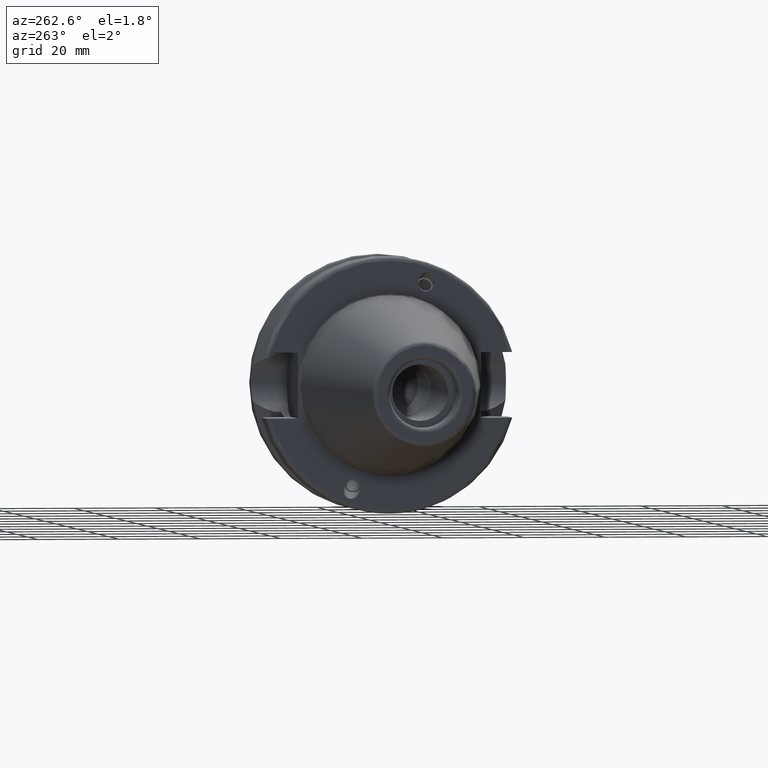
[diagram: clean part render]
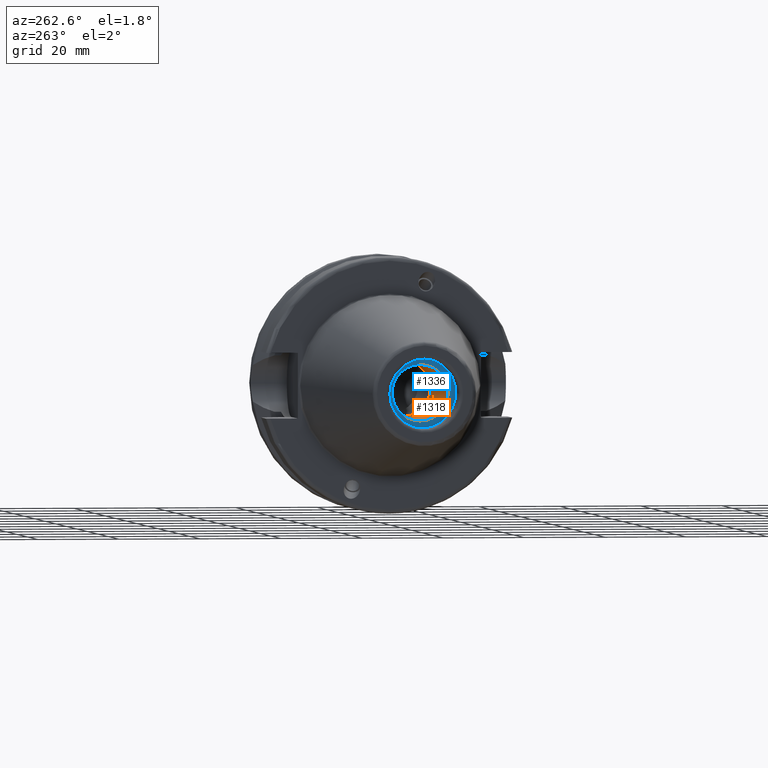
[diagram: same view with the hole feature highlighted: cylindrical wall and planar end face, labeled with their STEP entity ids]
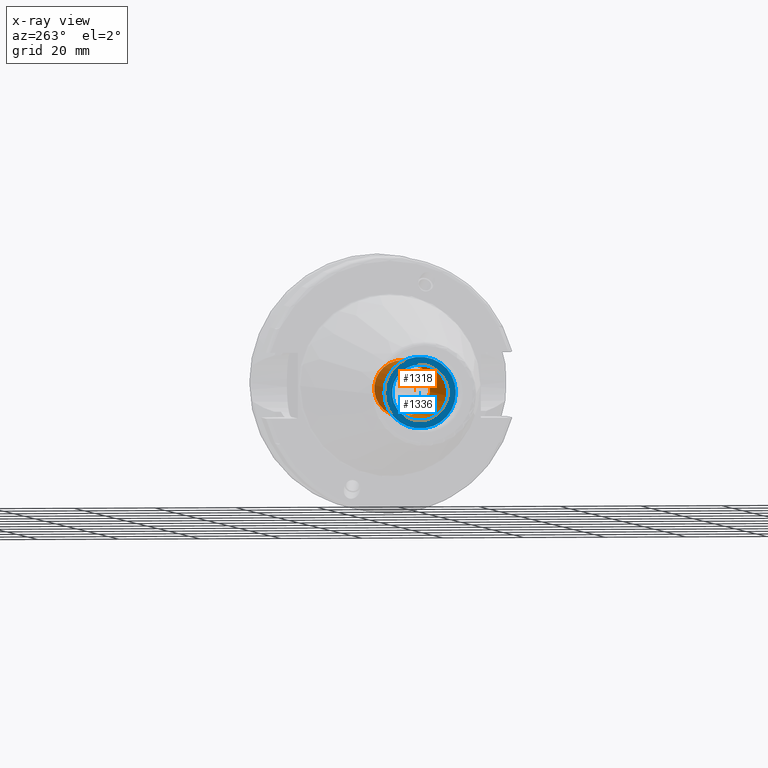
[diagram: x-ray of the same camera — body ghosted, the hole faces saturated]
A machine part, auxiliary view. The highlighted faces form one hole feature of diameter 13.835 mm: the cylindrical wall (entity #1318, orange) and its adjacent planar end face (entity #1336, blue) — they share a circular edge in the B-rep.
The next image is the same camera in x-ray (body ghosted, the hole faces saturated) — the bore reads through the body.
Wall:
#77=CYLINDRICAL_SURFACE('',#1475,6.9175);
#148=LINE('',#2343,#208);
#208=VECTOR('',#1791,6.9175);
#290=FACE_OUTER_BOUND('',#369,.T.);
#369=EDGE_LOOP('',(#1052,#1053,#1054,#1055,#1056));
#461=CIRCLE('',#1473,6.9175);
#462=CIRCLE('',#1474,6.9175);
#463=CIRCLE('',#1476,6.9175);
#584=VERTEX_POINT('',#2335);
#585=VERTEX_POINT('',#2336);
#586=VERTEX_POINT('',#2341);
#755=EDGE_CURVE('',#584,#585,#461,.T.);
#757=EDGE_CURVE('',#585,#584,#462,.T.);
#758=EDGE_CURVE('',#586,#586,#463,.T.);
#759=EDGE_CURVE('',#586,#585,#148,.T.);
#1052=ORIENTED_EDGE('',*,*,#758,.F.);
#1053=ORIENTED_EDGE('',*,*,#759,.T.);
#1054=ORIENTED_EDGE('',*,*,#755,.F.);
#1055=ORIENTED_EDGE('',*,*,#757,.F.);
#1056=ORIENTED_EDGE('',*,*,#759,.F.);
#1318=ADVANCED_FACE('',(#290),#77,.F.);
#1473=AXIS2_PLACEMENT_3D('',#2337,#1782,#1783);
#1474=AXIS2_PLACEMENT_3D('',#2339,#1785,#1786);
#1475=AXIS2_PLACEMENT_3D('',#2340,#1787,#1788);
#1476=AXIS2_PLACEMENT_3D('',#2342,#1789,#1790);
#1782=DIRECTION('center_axis',(-1.,0.,0.));
#1783=DIRECTION('ref_axis',(0.,0.,1.));
#1785=DIRECTION('center_axis',(-1.,0.,0.));
#1786=DIRECTION('ref_axis',(0.,0.,1.));
#1787=DIRECTION('center_axis',(-1.,0.,0.));
#1788=DIRECTION('ref_axis',(0.,0.,1.));
#1789=DIRECTION('center_axis',(1.,0.,0.));
#1790=DIRECTION('ref_axis',(0.,0.,1.));
#1791=DIRECTION('',(1.,0.,0.));
#2335=CARTESIAN_POINT('',(-22.4,0.,6.9175));
#2336=CARTESIAN_POINT('',(-22.4,-8.47149423310182E-16,-6.9175));
#2337=CARTESIAN_POINT('Origin',(-22.4,0.,0.));
#2339=CARTESIAN_POINT('Origin',(-22.4,0.,0.));
#2340=CARTESIAN_POINT('Origin',(-43.9,0.,0.));
#2341=CARTESIAN_POINT('',(-56.4,8.47149423310182E-16,-6.9175));
#2342=CARTESIAN_POINT('Origin',(-56.4,0.,0.));
#2343=CARTESIAN_POINT('',(-43.9,-8.47149423310182E-16,-6.9175));
End face:
#99=FACE_BOUND('',#389,.T.);
#121=PLANE('',#1509);
#308=FACE_OUTER_BOUND('',#388,.T.);
#388=EDGE_LOOP('',(#1164,#1165));
#389=EDGE_LOOP('',(#1166));
#463=CIRCLE('',#1476,6.9175);
#479=CIRCLE('',#1510,8.8);
#480=CIRCLE('',#1511,8.8);
#586=VERTEX_POINT('',#2341);
#635=VERTEX_POINT('',#2578);
#636=VERTEX_POINT('',#2579);
#758=EDGE_CURVE('',#586,#586,#463,.T.);
#825=EDGE_CURVE('',#635,#636,#479,.T.);
#826=EDGE_CURVE('',#636,#635,#480,.T.);
#1164=ORIENTED_EDGE('',*,*,#825,.F.);
#1165=ORIENTED_EDGE('',*,*,#826,.F.);
#1166=ORIENTED_EDGE('',*,*,#758,.T.);
#1336=ADVANCED_FACE('',(#308,#99),#121,.T.);
#1476=AXIS2_PLACEMENT_3D('',#2342,#1789,#1790);
#1509=AXIS2_PLACEMENT_3D('',#2577,#1887,#1888);
#1510=AXIS2_PLACEMENT_3D('',#2580,#1889,#1890);
#1511=AXIS2_PLACEMENT_3D('',#2581,#1891,#1892);
#1789=DIRECTION('center_axis',(1.,0.,0.));
#1790=DIRECTION('ref_axis',(0.,0.,1.));
#1887=DIRECTION('center_axis',(-1.,0.,0.));
#1888=DIRECTION('ref_axis',(0.,0.,1.));
#1889=DIRECTION('center_axis',(1.,0.,0.));
#1890=DIRECTION('ref_axis',(0.,0.,-1.));
#1891=DIRECTION('center_axis',(1.,0.,0.));
#1892=DIRECTION('ref_axis',(0.,0.,-1.));
#2341=CARTESIAN_POINT('',(-56.4,8.47149423310182E-16,-6.9175));
#2342=CARTESIAN_POINT('Origin',(-56.4,0.,0.));
#2577=CARTESIAN_POINT('Origin',(-56.4,8.8,0.));
#2578=CARTESIAN_POINT('',(-56.4,8.8,0.));
#2579=CARTESIAN_POINT('',(-56.4,-8.8,-1.07768918324967E-15));
#2580=CARTESIAN_POINT('Origin',(-56.4,0.,0.));
#2581=CARTESIAN_POINT('Origin',(-56.4,0.,0.));